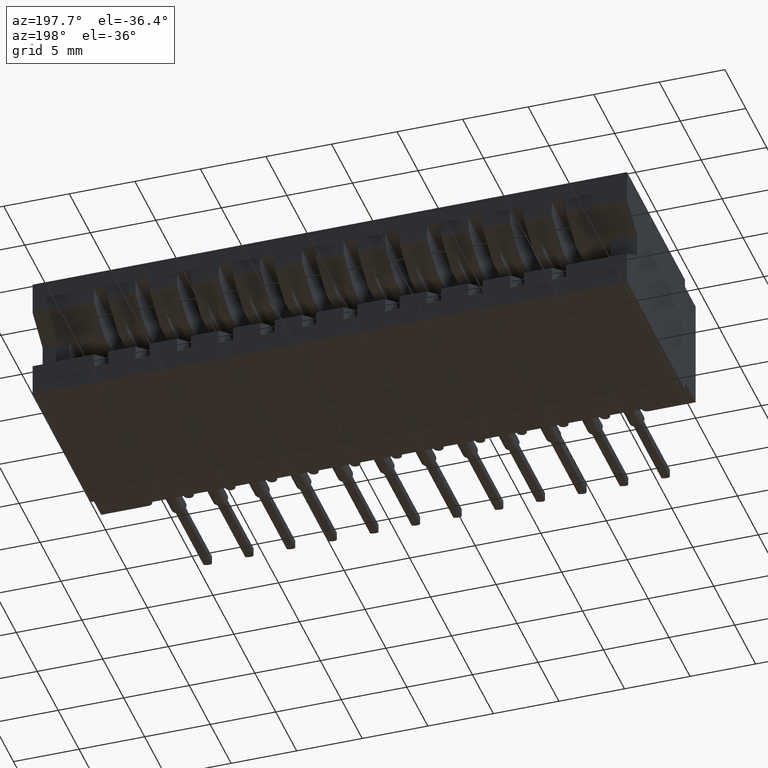
[diagram: clean part render]
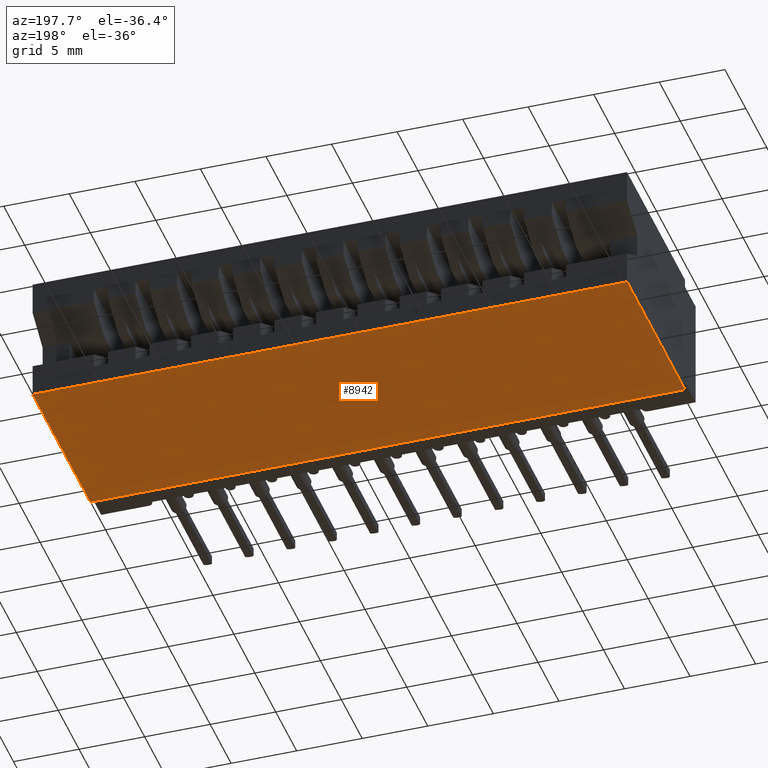
[diagram: same view with one face highlighted and labeled with its STEP entity id]
A machine part, auxiliary view. The second image highlights one B-rep face of the part: STEP entity #8942.
In plain terms, the highlighted planar face has unit normal (0, 0, 1).
Its self-contained STEP definition (entity closure, byte-faithful):
#1515 = VERTEX_POINT ( 'NONE', #20027 ) ;
#1784 = DIRECTION ( 'NONE',  ( -0.0000000000000000000, -1.000000000000000000, -0.0000000000000000000 ) ) ;
#3290 = VERTEX_POINT ( 'NONE', #6956 ) ;
#4457 = VECTOR ( 'NONE', #1784, 39.37007874015748143 ) ;
#4598 = EDGE_CURVE ( 'NONE', #1515, #3290, #20482, .T. ) ;
#4753 = CARTESIAN_POINT ( 'NONE',  ( 1.784999999999999920, 0.6449999999999999067, -0.3900000000000000133 ) ) ;
#5974 = FACE_OUTER_BOUND ( 'NONE', #9972, .T. ) ;
#6956 = CARTESIAN_POINT ( 'NONE',  ( 0.0000000000000000000, 0.1000000000000000056, -0.3900000000000000133 ) ) ;
#7459 = PLANE ( 'NONE',  #11862 ) ;
#8299 = EDGE_CURVE ( 'NONE', #12715, #1515, #9881, .T. ) ;
#8940 = DIRECTION ( 'NONE',  ( 0.0000000000000000000, 0.0000000000000000000, 1.000000000000000000 ) ) ;
#8942 = ADVANCED_FACE ( 'NONE', ( #5974 ), #7459, .F. ) ;
#9049 = CARTESIAN_POINT ( 'NONE',  ( 0.0000000000000000000, 0.6449999999999999067, -0.3900000000000000133 ) ) ;
#9881 = LINE ( 'NONE', #16800, #13272 ) ;
#9972 = EDGE_LOOP ( 'NONE', ( #12235, #15995, #18486, #11546 ) ) ;
#10358 = CARTESIAN_POINT ( 'NONE',  ( 1.784999999999999920, 0.1000000000000000056, -0.3900000000000000133 ) ) ;
#10404 = CARTESIAN_POINT ( 'NONE',  ( 0.0000000000000000000, 0.6449999999999999067, -0.3900000000000000133 ) ) ;
#11546 = ORIENTED_EDGE ( 'NONE', *, *, #8299, .F. ) ;
#11862 = AXIS2_PLACEMENT_3D ( 'NONE', #9049, #8940, #12580 ) ;
#12235 = ORIENTED_EDGE ( 'NONE', *, *, #20480, .T. ) ;
#12580 = DIRECTION ( 'NONE',  ( 1.000000000000000000, 0.0000000000000000000, -0.0000000000000000000 ) ) ;
#12715 = VERTEX_POINT ( 'NONE', #4753 ) ;
#12772 = LINE ( 'NONE', #19467, #21570 ) ;
#12951 = VECTOR ( 'NONE', #20563, 39.37007874015748143 ) ;
#13177 = DIRECTION ( 'NONE',  ( -1.000000000000000000, -0.0000000000000000000, -0.0000000000000000000 ) ) ;
#13272 = VECTOR ( 'NONE', #13177, 39.37007874015748143 ) ;
#14600 = VERTEX_POINT ( 'NONE', #22053 ) ;
#15995 = ORIENTED_EDGE ( 'NONE', *, *, #22368, .T. ) ;
#16800 = CARTESIAN_POINT ( 'NONE',  ( 0.0000000000000000000, 0.6449999999999999067, -0.3900000000000000133 ) ) ;
#18486 = ORIENTED_EDGE ( 'NONE', *, *, #4598, .F. ) ;
#18628 = LINE ( 'NONE', #10358, #12951 ) ;
#19345 = DIRECTION ( 'NONE',  ( -0.0000000000000000000, -1.000000000000000000, -0.0000000000000000000 ) ) ;
#19467 = CARTESIAN_POINT ( 'NONE',  ( 1.784999999999999920, 0.6449999999999999067, -0.3900000000000000133 ) ) ;
#20027 = CARTESIAN_POINT ( 'NONE',  ( 0.0000000000000000000, 0.6449999999999999067, -0.3900000000000000133 ) ) ;
#20480 = EDGE_CURVE ( 'NONE', #12715, #14600, #12772, .T. ) ;
#20482 = LINE ( 'NONE', #10404, #4457 ) ;
#20563 = DIRECTION ( 'NONE',  ( -1.000000000000000000, -0.0000000000000000000, -0.0000000000000000000 ) ) ;
#21570 = VECTOR ( 'NONE', #19345, 39.37007874015748143 ) ;
#22053 = CARTESIAN_POINT ( 'NONE',  ( 1.784999999999999920, 0.1000000000000000056, -0.3900000000000000133 ) ) ;
#22368 = EDGE_CURVE ( 'NONE', #14600, #3290, #18628, .T. ) ;